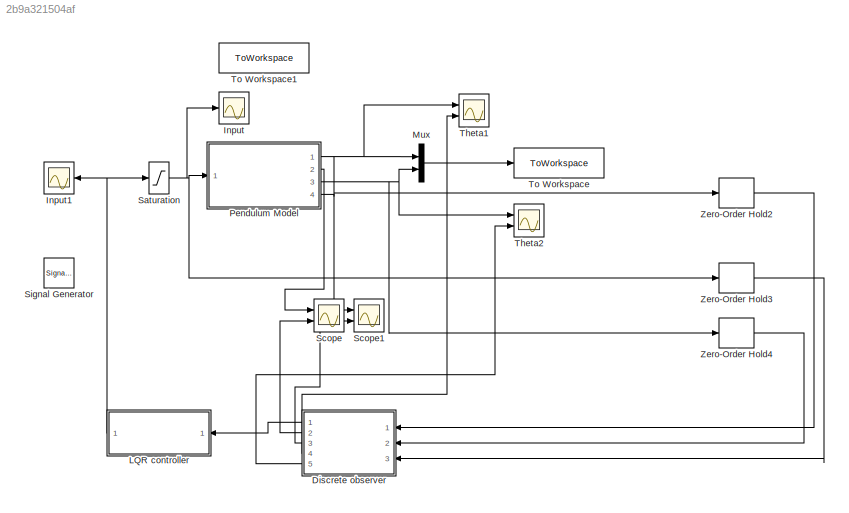
MODEL slx_2b9a321504af
KIND model
CONFIG AbsTol = auto
CONFIG EnableMultiTasking = on
CONFIG FixedStep = 0.00001
CONFIG MaxStep = auto
CONFIG MinStep = auto
CONFIG RelTol = 1e-3
CONFIG SampleTimeConstraint = Unconstrained
CONFIG SolverName = ode45
CONFIG StartTime = 0.0
CONFIG StopTime = 10
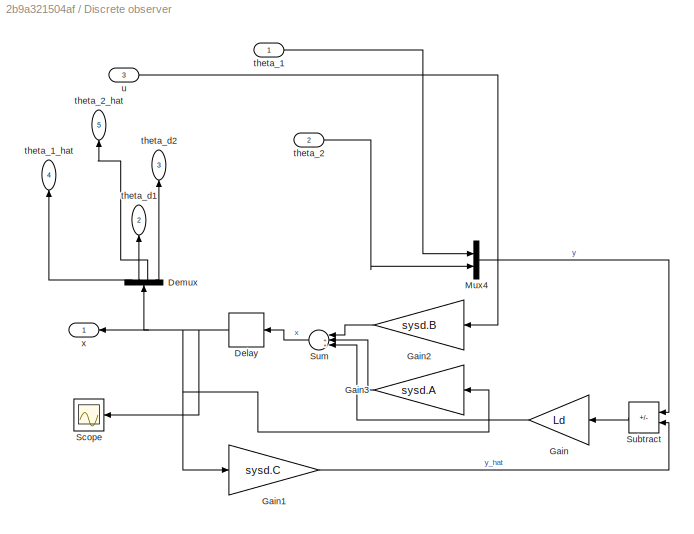
BLOCK [SubSystem] Discrete observer
  NameLocation = top
  Ports = [3, 5]
  RequestExecContextInheritance = off
BLOCK [Delay] Discrete observer/Delay
  DelayLength = 1
  InputPortMap = u0
  NameLocation = top
  Ports = [1, 1]
BLOCK [Demux] Discrete observer/Demux
  NameLocation = right
  Ports = [1, 4]
BLOCK [Gain] Discrete observer/Gain
  Gain = Ld
  Multiplication = Matrix(K*u) (u vector)
  NameLocation = top
BLOCK [Gain] Discrete observer/Gain1
  Gain = sysd.C
  Multiplication = Matrix(K*u) (u vector)
BLOCK [Gain] Discrete observer/Gain2
  Gain = sysd.B
  Multiplication = Matrix(K*u) (u vector)
  NameLocation = top
BLOCK [Gain] Discrete observer/Gain3
  Gain = sysd.A
  Multiplication = Matrix(K*u) (u vector)
  NameLocation = top
BLOCK [Mux] Discrete observer/Mux4
  DisplayOption = bar
  Inputs = 2
  Ports = [2, 1]
BLOCK [Scope] Discrete observer/Scope
  Floating = off
  NameLocation = top
  NumInputPorts = 1
  Ports = [1]
  ScopeSpecificationString = Simulink.scopes.TimeScopeBlockCfg('CurrentConfiguration', extmgr.ConfigurationSet(extmgr.Configuration('Core','General UI',true),extmgr.Configuration('Core','Source UI',true),extmgr.Configuration('Sources','WiredSimulink',true,'DataLoggingVariableName','ScopeData3'),extmgr.Configuration('Visuals','Time Domain',true,'SerializedDisplays',{struct('MinYLimReal','-0.78894','MaxYLimReal','0.56102','YLab...<+1467ch>
BLOCK [Sum] Discrete observer/Subtract
  IconShape = rectangular
  Inputs = +-
  NameLocation = top
  Ports = [2, 1]
BLOCK [Sum] Discrete observer/Sum
  Inputs = |+++
  NameLocation = top
  Ports = [3, 1]
BLOCK [Inport] Discrete observer/theta_1
BLOCK [Outport] Discrete observer/theta_1_hat
  NameLocation = right
  Port = 4
BLOCK [Inport] Discrete observer/theta_2
  Port = 2
BLOCK [Outport] Discrete observer/theta_2_hat
  NameLocation = right
  Port = 5
BLOCK [Outport] Discrete observer/theta_d1
  NameLocation = right
  Port = 2
BLOCK [Outport] Discrete observer/theta_d2
  NameLocation = right
  Port = 3
BLOCK [Inport] Discrete observer/u
  Port = 3
BLOCK [Outport] Discrete observer/x
BLOCK [Scope] Input
  Floating = off
  NumInputPorts = 1
  Ports = [1]
  ScopeSpecificationString = Simulink.scopes.TimeScopeBlockCfg('CurrentConfiguration', extmgr.ConfigurationSet(extmgr.Configuration('Core','General UI',true),extmgr.Configuration('Core','Source UI',true),extmgr.Configuration('Sources','WiredSimulink',true,'DataLoggingSaveFormat','StructureWithTime','DataLoggingDecimation','1','DataLoggingDecimateData',true),extmgr.Configuration('Visuals','Time Domain',true,'SerializedDisplays...<+1667ch>
BLOCK [Scope] Input1
  Floating = off
  NumInputPorts = 1
  Ports = [1]
  ScopeSpecificationString = Simulink.scopes.TimeScopeBlockCfg('CurrentConfiguration', extmgr.ConfigurationSet(extmgr.Configuration('Core','General UI',true),extmgr.Configuration('Core','Source UI',true),extmgr.Configuration('Sources','WiredSimulink',true,'DataLoggingSaveFormat','StructureWithTime','DataLoggingDecimation','1','DataLoggingDecimateData',true,'DataLoggingVariableName','ScopeData1'),extmgr.Configuration('Visuals'...<+1696ch>
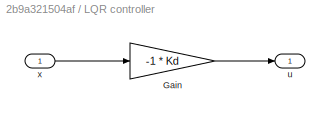
BLOCK [SubSystem] LQR controller
  Ports = [1, 1]
  RequestExecContextInheritance = off
BLOCK [Gain] LQR controller/Gain
  Gain = -1 * Kd
  Multiplication = Matrix(K*u) (u vector)
BLOCK [Outport] LQR controller/u
BLOCK [Inport] LQR controller/x
BLOCK [Mux] Mux
  DisplayOption = bar
  Inputs = 2
  Ports = [2, 1]
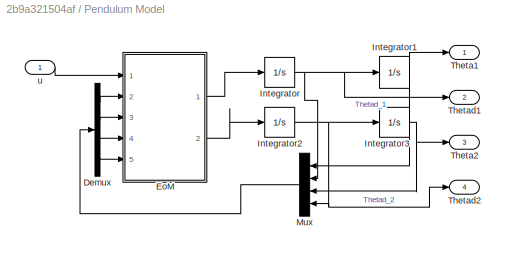
BLOCK [SubSystem] Pendulum Model
  Ports = [1, 4]
  RequestExecContextInheritance = off
BLOCK [Demux] Pendulum Model/Demux
  Ports = [1, 4]
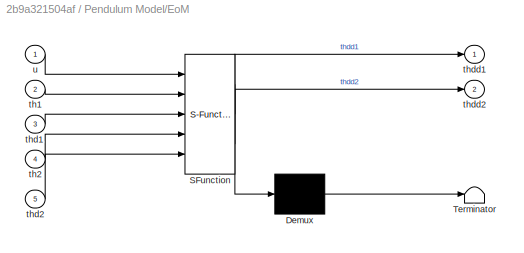
BLOCK [SubSystem] Pendulum Model/EoM
  ErrorFcn = Stateflow.Translate.translate
  PermitHierarchicalResolution = ExplicitOnly
  Ports = [5, 2]
  RequestExecContextInheritance = off
  SFBlockType = MATLAB Function
  TreatAsAtomicUnit = on
BLOCK [Demux] Pendulum Model/EoM/ Demux 
  Outputs = 1
  Ports = [1, 1]
BLOCK [S-Function] Pendulum Model/EoM/ SFunction 
  EnableBusSupport = on
  FunctionName = sf_sfun
  Parameters = model_par
  PortCounts = [5 3]
  Ports = [5, 3]
  SFcnIsStateOwnerBlock = off
  SFunctionDeploymentMode = off
  Tag = Stateflow S-Function 2
BLOCK [Terminator] Pendulum Model/EoM/ Terminator 
BLOCK [Inport] Pendulum Model/EoM/th1
  Port = 2
BLOCK [Inport] Pendulum Model/EoM/th2
  Port = 4
BLOCK [Inport] Pendulum Model/EoM/thd1
  Port = 3
BLOCK [Inport] Pendulum Model/EoM/thd2
  Port = 5
BLOCK [Outport] Pendulum Model/EoM/thdd1
BLOCK [Outport] Pendulum Model/EoM/thdd2
  Port = 2
BLOCK [Inport] Pendulum Model/EoM/u
BLOCK [Integrator] Pendulum Model/Integrator
  ContinuousStateAttributes = 'Theta1'
  InitialCondition = Thetad1_0
  Ports = [1, 1]
BLOCK [Integrator] Pendulum Model/Integrator1
  ContinuousStateAttributes = 'Theta1'
  InitialCondition = Theta1_0
  Ports = [1, 1]
BLOCK [Integrator] Pendulum Model/Integrator2
  ContinuousStateAttributes = 'Theta1'
  InitialCondition = Thetad2_0
  Ports = [1, 1]
BLOCK [Integrator] Pendulum Model/Integrator3
  ContinuousStateAttributes = 'Theta1'
  InitialCondition = Theta2_0
  Ports = [1, 1]
BLOCK [Mux] Pendulum Model/Mux
  DisplayOption = bar
  Ports = [4, 1]
BLOCK [Outport] Pendulum Model/Theta1
BLOCK [Outport] Pendulum Model/Theta2
  Port = 3
BLOCK [Outport] Pendulum Model/Thetad1
  Port = 2
BLOCK [Outport] Pendulum Model/Thetad2
  Port = 4
BLOCK [Inport] Pendulum Model/u
BLOCK [Saturate] Saturation
  LowerLimit = -1
  UpperLimit = 1
BLOCK [Scope] Scope
  Floating = off
  NumInputPorts = 2
  Ports = [2]
  ScopeSpecificationString = Simulink.scopes.TimeScopeBlockCfg('CurrentConfiguration', extmgr.ConfigurationSet(extmgr.Configuration('Core','General UI',true),extmgr.Configuration('Core','Source UI',true),extmgr.Configuration('Sources','WiredSimulink',true,'DataLoggingVariableName','ScopeData1'),extmgr.Configuration('Visuals','Time Domain',true,'SerializedDisplays',{struct('MinYLimReal','-0.08362','MaxYLimReal','0.7526','YLabe...<+1446ch>
BLOCK [Scope] Scope1
  Floating = off
  NumInputPorts = 2
  Ports = [2]
  ScopeSpecificationString = Simulink.scopes.TimeScopeBlockCfg('CurrentConfiguration', extmgr.ConfigurationSet(extmgr.Configuration('Core','General UI',true),extmgr.Configuration('Core','Source UI',true),extmgr.Configuration('Sources','WiredSimulink',true,'DataLoggingVariableName','ScopeData2'),extmgr.Configuration('Visuals','Time Domain',true,'SerializedDisplays',{struct('MinYLimReal','-0.89439','MaxYLimReal','1.64257','YLab...<+1475ch>
BLOCK [SignalGenerator] Signal Generator
  Amplitude = 0.7
  Frequency = 3
  Ports = [0, 1]
  Units = rad/sec
BLOCK [Scope] Theta1
  Floating = off
  NumInputPorts = 2
  Ports = [2]
  ScopeSpecificationString = Simulink.scopes.TimeScopeBlockCfg('CurrentConfiguration', extmgr.ConfigurationSet(extmgr.Configuration('Core','General UI',true),extmgr.Configuration('Core','Source UI',true),extmgr.Configuration('Sources','WiredSimulink',true,'DataLoggingVariableName','ScopeData1','DataLoggingSaveFormat','StructureWithTime','DataLoggingDecimation','1','DataLoggingDecimateData',true),extmgr.Configuration('Visuals'...<+1708ch>
BLOCK [Scope] Theta2
  Floating = off
  NumInputPorts = 2
  Ports = [2]
  ScopeSpecificationString = Simulink.scopes.TimeScopeBlockCfg('CurrentConfiguration', extmgr.ConfigurationSet(extmgr.Configuration('Core','General UI',true),extmgr.Configuration('Core','Source UI',true),extmgr.Configuration('Sources','WiredSimulink',true,'DataLoggingVariableName','ScopeData2','DataLoggingSaveFormat','StructureWithTime','DataLoggingDecimation','1','DataLoggingDecimateData',true),extmgr.Configuration('Visuals'...<+1730ch>
BLOCK [ToWorkspace] To Workspace
  FixptAsFi = on
  MaxDataPoints = inf
  Ports = [1]
  SampleTime = -1
  SaveFormat = Timeseries
  VariableName = angles_raw
BLOCK [ToWorkspace] To Workspace1
  FixptAsFi = on
  MaxDataPoints = inf
  Ports = [1]
  SampleTime = -1
  SaveFormat = Timeseries
  VariableName = Input
BLOCK [ZeroOrderHold] Zero-Order Hold2
  SampleTime = h
BLOCK [ZeroOrderHold] Zero-Order Hold3
  SampleTime = h
BLOCK [ZeroOrderHold] Zero-Order Hold4
  SampleTime = h
NET Discrete observer/Delay:1 -> Discrete observer/Demux:1, Discrete observer/Gain1:1, Discrete observer/Gain3:1, Discrete observer/Scope:1, Discrete observer/x:1
LINE Discrete observer/Demux:1 -> Discrete observer/theta_1_hat:1
LINE Discrete observer/Demux:2 -> Discrete observer/theta_d1:1
LINE Discrete observer/Demux:3 -> Discrete observer/theta_2_hat:1
LINE Discrete observer/Demux:4 -> Discrete observer/theta_d2:1
LINE Discrete observer/Gain1:1 -> Discrete observer/Subtract:2
LINE Discrete observer/Gain2:1 -> Discrete observer/Sum:1
LINE Discrete observer/Gain3:1 -> Discrete observer/Sum:2
LINE Discrete observer/Gain:1 -> Discrete observer/Sum:3
LINE Discrete observer/Mux4:1 -> Discrete observer/Subtract:1
LINE Discrete observer/Subtract:1 -> Discrete observer/Gain:1
LINE Discrete observer/Sum:1 -> Discrete observer/Delay:1
LINE Discrete observer/theta_1:1 -> Discrete observer/Mux4:1
LINE Discrete observer/theta_2:1 -> Discrete observer/Mux4:2
LINE Discrete observer/u:1 -> Discrete observer/Gain2:1
LINE Discrete observer:1 -> LQR controller:1
LINE Discrete observer:2 -> Scope:2
LINE Discrete observer:3 -> Scope1:2
LINE Discrete observer:4 -> Theta1:2
LINE Discrete observer:5 -> Theta2:2
LINE LQR controller/Gain:1 -> LQR controller/u:1
LINE LQR controller/x:1 -> LQR controller/Gain:1
NET LQR controller:1 -> Input1:1, Saturation:1
LINE Mux:1 -> To Workspace:1
LINE Pendulum Model/Demux:1 -> Pendulum Model/EoM:2
LINE Pendulum Model/Demux:2 -> Pendulum Model/EoM:3
LINE Pendulum Model/Demux:3 -> Pendulum Model/EoM:4
LINE Pendulum Model/Demux:4 -> Pendulum Model/EoM:5
LINE Pendulum Model/EoM:1 -> Pendulum Model/Integrator:1
LINE Pendulum Model/EoM:2 -> Pendulum Model/Integrator2:1
NET Pendulum Model/Integrator1:1 -> Pendulum Model/Mux:1, Pendulum Model/Theta1:1
NET Pendulum Model/Integrator2:1 -> Pendulum Model/Integrator3:1, Pendulum Model/Mux:4, Pendulum Model/Thetad2:1
NET Pendulum Model/Integrator3:1 -> Pendulum Model/Mux:3, Pendulum Model/Theta2:1
NET Pendulum Model/Integrator:1 -> Pendulum Model/Integrator1:1, Pendulum Model/Mux:2, Pendulum Model/Thetad1:1
LINE Pendulum Model/Mux:1 -> Pendulum Model/Demux:1
LINE Pendulum Model/u:1 -> Pendulum Model/EoM:1
NET Pendulum Model:1 -> Mux:1, Theta1:1, Zero-Order Hold2:1
LINE Pendulum Model:2 -> Scope:1
NET Pendulum Model:3 -> Mux:2, Theta2:1, Zero-Order Hold4:1
LINE Pendulum Model:4 -> Scope1:1
NET Saturation:1 -> Input:1, Pendulum Model:1, Zero-Order Hold3:1
LINE Zero-Order Hold2:1 -> Discrete observer:1
LINE Zero-Order Hold3:1 -> Discrete observer:3
LINE Zero-Order Hold4:1 -> Discrete observer:2
note: NET lines group one-source signal fan-out (src -> all destinations, sorted); 1:1 wires keep LINE
CHART Pendulum Model/EoM states=1 transitions=1
  STATE_LABEL 'eML_blk_kernel()'
  STATE_LABEL 'SCRIPT:\nfunction [thdd1, thdd2] = fcn(u, th1, thd1, th2, thd2, model_par)\nthdd1 = -model_par.a11*thd1 - model_par.a12 * u;\nF = -model_par.c2*model_par.l1*model_par.m2*sin(thd2)*thd1^2 - model_par.b2*thd2 + model_par.c2*model_par.g*model_par.m2*sin(th1 + th2);\nM21 = model_par.m2*model_par.c2^2 + model_par.l1*model_par.m2*cos(thd2)*model_par.c2 + model_par.J2;\nM22 = model_par.m2*model_par.c2^2 + mod...<+44ch>'
CHART  states=0 transitions=0
